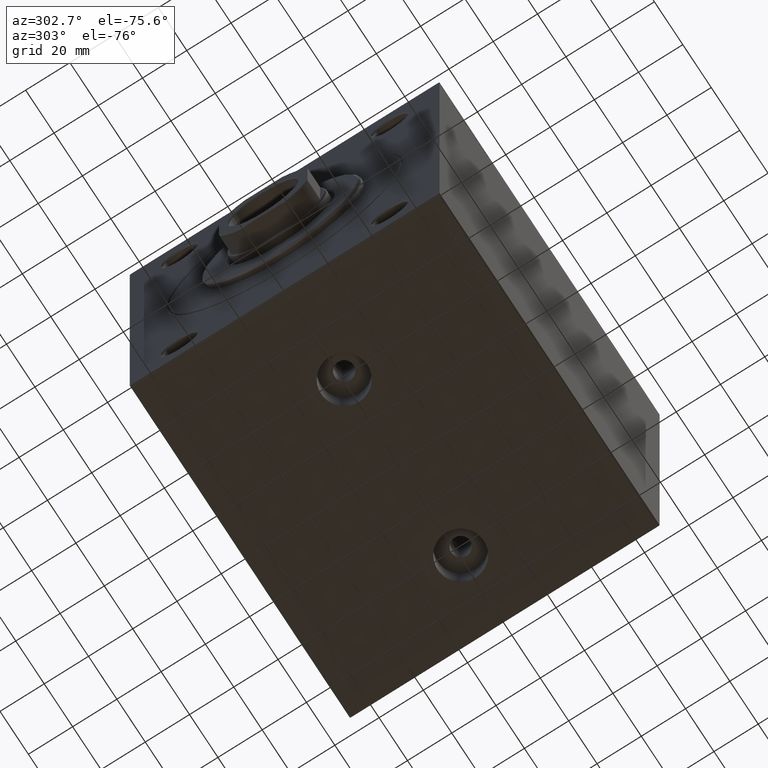
[diagram: clean part render]
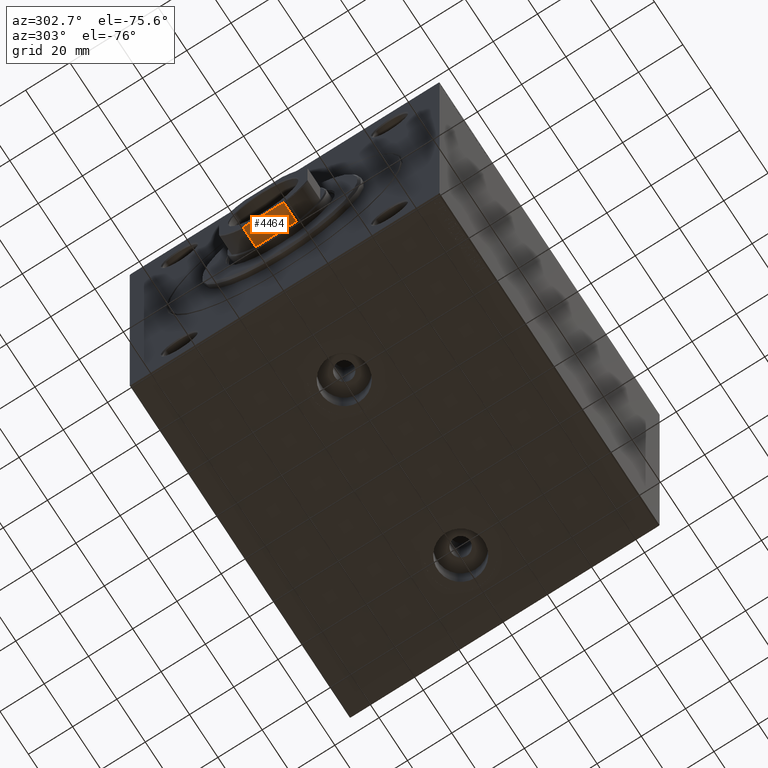
[diagram: same view with one face highlighted and labeled with its STEP entity id]
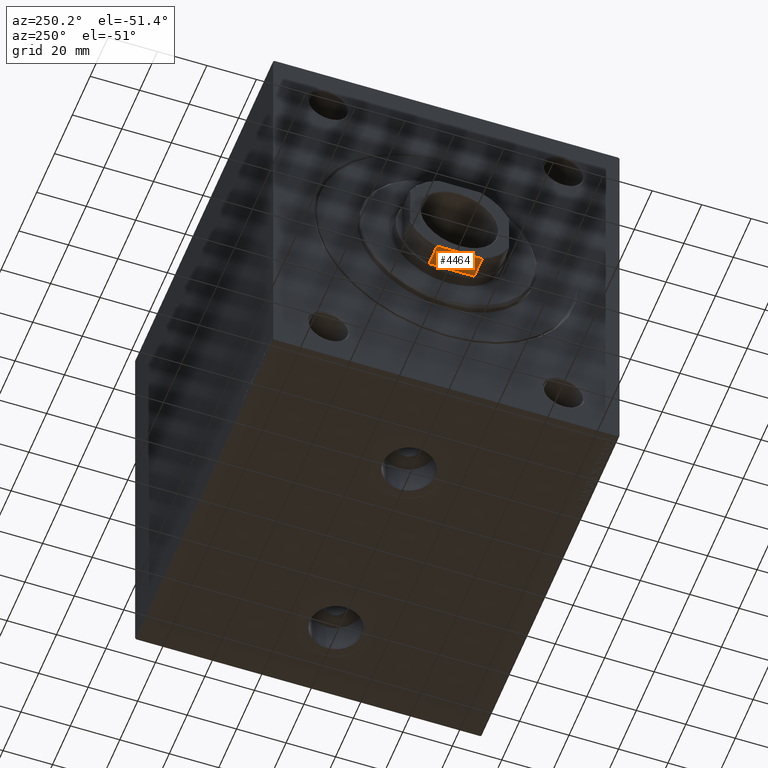
[diagram: same view with one face highlighted and labeled with its STEP entity id]
A machine part, auxiliary view. The second image highlights one B-rep face of the part: STEP entity #4464.
A second angle (auxiliary view) of the same face is appended — the face is thin or edge-on in the first view.
In plain terms, the highlighted planar face has unit normal (0, 0, 1).
Its self-contained STEP definition (entity closure, byte-faithful):
#1333 = VECTOR ( 'NONE', #28217, 1000.000000000000000 ) ;
#2961 = AXIS2_PLACEMENT_3D ( 'NONE', #19985, #19315, #5612 ) ;
#4248 = CARTESIAN_POINT ( 'NONE',  ( -20.00000000000000355, 8.917857062074562080, 143.8030222705679080 ) ) ;
#4464 = ADVANCED_FACE ( 'NONE', ( #33266 ), #9424, .F. ) ;
#5141 = EDGE_CURVE ( 'NONE', #36964, #23338, #12345, .T. ) ;
#5612 = DIRECTION ( 'NONE',  ( -2.602085213965210642E-16, 1.000000000000000000, 0.000000000000000000 ) ) ;
#6683 = DIRECTION ( 'NONE',  ( -0.000000000000000000, -0.000000000000000000, 1.000000000000000000 ) ) ;
#7002 = CARTESIAN_POINT ( 'NONE',  ( -20.00000000000000000, -8.669375665356209737, 143.9030945505373609 ) ) ;
#7866 = CARTESIAN_POINT ( 'NONE',  ( -20.00000000000000711, 19.99999999999998934, 135.0000000000000000 ) ) ;
#9424 = PLANE ( 'NONE',  #2961 ) ;
#9926 = CARTESIAN_POINT ( 'NONE',  ( -19.99999999999999289, 9.165151389911690316, 134.9999999999999716 ) ) ;
#10311 = CARTESIAN_POINT ( 'NONE',  ( -20.00000000000000000, -8.419619943916679006, 144.0000000000000284 ) ) ;
#10457 = EDGE_LOOP ( 'NONE', ( #19839, #21394, #34202, #34315, #13016, #39155 ) ) ;
#10881 = CARTESIAN_POINT ( 'NONE',  ( -19.99999999999999645, -9.165151389911686763, 143.6999999999999886 ) ) ;
#11484 = EDGE_CURVE ( 'NONE', #33913, #36964, #26701, .T. ) ;
#12345 = B_SPLINE_CURVE_WITH_KNOTS ( 'NONE', 3,
 ( #31506, #24087, #7002, #28353 ),
 .UNSPECIFIED., .F., .F.,
 ( 4, 4 ),
 ( 0.000000000000000000, 0.0008036274864434515006 ),
 .UNSPECIFIED. ) ;
#13016 = ORIENTED_EDGE ( 'NONE', *, *, #43313, .F. ) ;
#14929 = LINE ( 'NONE', #21467, #1333 ) ;
#15044 = DIRECTION ( 'NONE',  ( 2.602085213965210642E-16, -1.000000000000000000, 0.000000000000000000 ) ) ;
#15188 = VERTEX_POINT ( 'NONE', #42137 ) ;
#18950 = LINE ( 'NONE', #26141, #19163 ) ;
#19163 = VECTOR ( 'NONE', #23004, 1000.000000000000000 ) ;
#19315 = DIRECTION ( 'NONE',  ( 1.000000000000000000, 2.602085213965210642E-16, -0.000000000000000000 ) ) ;
#19839 = ORIENTED_EDGE ( 'NONE', *, *, #11484, .T. ) ;
#19985 = CARTESIAN_POINT ( 'NONE',  ( -20.00000000000000711, 19.99999999999998934, 144.0000000000000284 ) ) ;
#21394 = ORIENTED_EDGE ( 'NONE', *, *, #5141, .T. ) ;
#21467 = CARTESIAN_POINT ( 'NONE',  ( -20.00000000000000711, 19.99999999999998934, 144.0000000000000284 ) ) ;
#22227 = VECTOR ( 'NONE', #15044, 1000.000000000000000 ) ;
#23004 = DIRECTION ( 'NONE',  ( -0.000000000000000000, -0.000000000000000000, 1.000000000000000000 ) ) ;
#23276 = VERTEX_POINT ( 'NONE', #35984 ) ;
#23338 = VERTEX_POINT ( 'NONE', #10311 ) ;
#24087 = CARTESIAN_POINT ( 'NONE',  ( -19.99999999999999645, -8.917857062074569185, 143.8030222705679080 ) ) ;
#24590 = CARTESIAN_POINT ( 'NONE',  ( -19.99999999999999645, -9.165151389911686763, 134.9999999999999716 ) ) ;
#26141 = CARTESIAN_POINT ( 'NONE',  ( -19.99999999999999289, 9.165151389911692092, -0.001000000000001000089 ) ) ;
#26701 = LINE ( 'NONE', #40422, #42629 ) ;
#27393 = B_SPLINE_CURVE_WITH_KNOTS ( 'NONE', 3,
 ( #32132, #42685, #4248, #35284 ),
 .UNSPECIFIED., .F., .F.,
 ( 4, 4 ),
 ( 0.000000000000000000, 0.0008036274864434659205 ),
 .UNSPECIFIED. ) ;
#27602 = VERTEX_POINT ( 'NONE', #9926 ) ;
#28217 = DIRECTION ( 'NONE',  ( 2.602085213965210642E-16, -1.000000000000000000, 0.000000000000000000 ) ) ;
#28353 = CARTESIAN_POINT ( 'NONE',  ( -20.00000000000000000, -8.419619943916679006, 144.0000000000000284 ) ) ;
#31506 = CARTESIAN_POINT ( 'NONE',  ( -19.99999999999999645, -9.165151389911686763, 143.6999999999999886 ) ) ;
#31895 = EDGE_CURVE ( 'NONE', #15188, #23338, #14929, .T. ) ;
#32132 = CARTESIAN_POINT ( 'NONE',  ( -20.00000000000000355, 8.419619943916666571, 144.0000000000000284 ) ) ;
#33266 = FACE_OUTER_BOUND ( 'NONE', #10457, .T. ) ;
#33913 = VERTEX_POINT ( 'NONE', #24590 ) ;
#34202 = ORIENTED_EDGE ( 'NONE', *, *, #31895, .F. ) ;
#34315 = ORIENTED_EDGE ( 'NONE', *, *, #37383, .T. ) ;
#35284 = CARTESIAN_POINT ( 'NONE',  ( -19.99999999999999289, 9.165151389911692092, 143.6999999999999886 ) ) ;
#35802 = EDGE_CURVE ( 'NONE', #27602, #33913, #42264, .T. ) ;
#35984 = CARTESIAN_POINT ( 'NONE',  ( -19.99999999999999289, 9.165151389911692092, 143.6999999999999886 ) ) ;
#36964 = VERTEX_POINT ( 'NONE', #10881 ) ;
#37383 = EDGE_CURVE ( 'NONE', #15188, #23276, #27393, .T. ) ;
#39155 = ORIENTED_EDGE ( 'NONE', *, *, #35802, .T. ) ;
#40422 = CARTESIAN_POINT ( 'NONE',  ( -19.99999999999999645, -9.165151389911686763, -0.001000000000001000089 ) ) ;
#42137 = CARTESIAN_POINT ( 'NONE',  ( -20.00000000000000355, 8.419619943916666571, 144.0000000000000284 ) ) ;
#42264 = LINE ( 'NONE', #7866, #22227 ) ;
#42629 = VECTOR ( 'NONE', #6683, 1000.000000000000000 ) ;
#42685 = CARTESIAN_POINT ( 'NONE',  ( -20.00000000000000711, 8.669375665356202632, 143.9030945505373609 ) ) ;
#43313 = EDGE_CURVE ( 'NONE', #27602, #23276, #18950, .T. ) ;